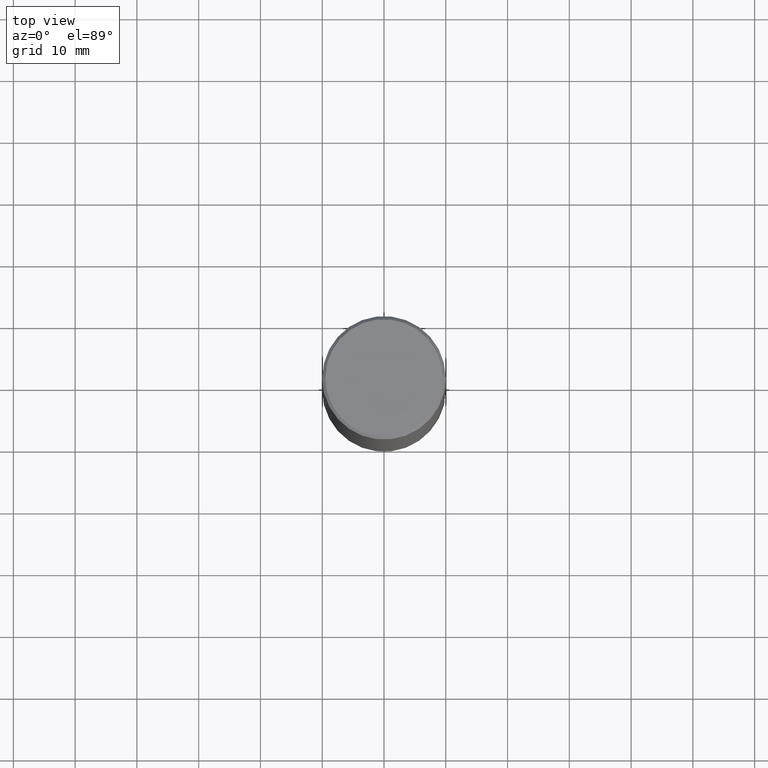
[diagram: clean part render]
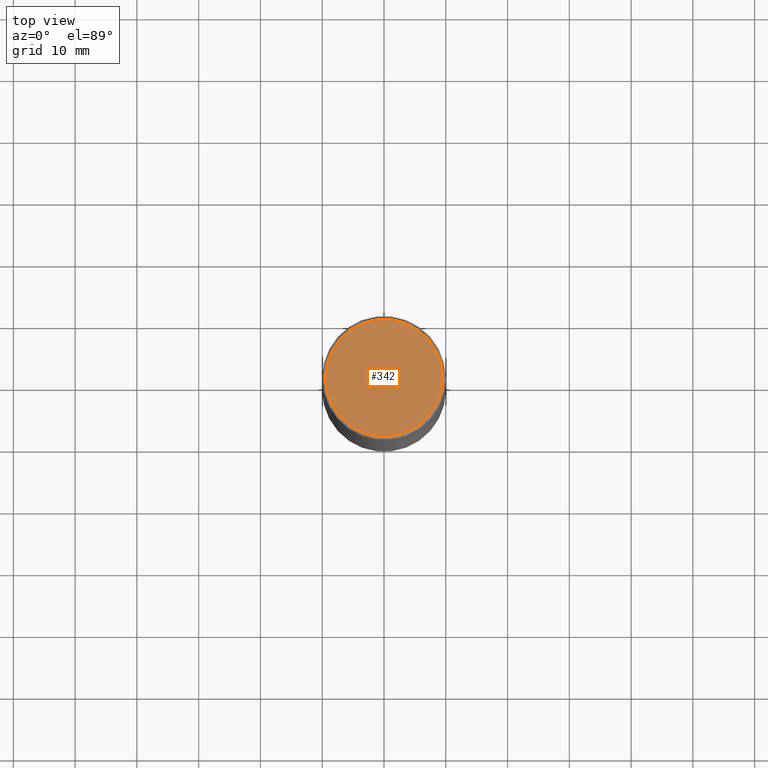
[diagram: same view with one face highlighted and labeled with its STEP entity id]
A machine part, top view. The second image highlights one B-rep face of the part: STEP entity #342.
In plain terms, the highlighted planar face has unit normal (0, -0, -1).
Its self-contained STEP definition (entity closure, byte-faithful):
#12 = CARTESIAN_POINT ( 'NONE',  ( -0.3737000000000003097, 2.644447966039789847E-15, -2.219626494852397645E-16 ) ) ;
#21 = CIRCLE ( 'NONE', #304, 0.3737000000000003097 ) ;
#51 = DIRECTION ( 'NONE',  ( 1.000000000000000000, -6.982962677686266711E-15, 4.877734241229871763E-29 ) ) ;
#64 = AXIS2_PLACEMENT_3D ( 'NONE', #152, #177, #400 ) ;
#80 = ORIENTED_EDGE ( 'NONE', *, *, #269, .T. ) ;
#95 = PLANE ( 'NONE',  #64 ) ;
#139 = CARTESIAN_POINT ( 'NONE',  ( 0.3737000000000003097, -2.667287895133369937E-15, -2.219626494852029345E-16 ) ) ;
#152 = CARTESIAN_POINT ( 'NONE',  ( 2.609533152651359776E-15, 0.3737000000000003097, -1.415747901068295320E-15 ) ) ;
#169 = EDGE_LOOP ( 'NONE', ( #204, #80 ) ) ;
#177 = DIRECTION ( 'NONE',  ( 2.438088387897960049E-29, -3.491481338843145188E-15, -1.000000000000000000 ) ) ;
#185 = DIRECTION ( 'NONE',  ( -2.445468806185136597E-29, 3.491481338843145583E-15, 1.000000000000000000 ) ) ;
#190 = AXIS2_PLACEMENT_3D ( 'NONE', #412, #185, #51 ) ;
#204 = ORIENTED_EDGE ( 'NONE', *, *, #376, .T. ) ;
#241 = VERTEX_POINT ( 'NONE', #139 ) ;
#269 = EDGE_CURVE ( 'NONE', #241, #329, #385, .T. ) ;
#285 = CARTESIAN_POINT ( 'NONE',  ( 5.428027354543142984E-45, -7.749784485978325769E-31, -2.219626494852213988E-16 ) ) ;
#304 = AXIS2_PLACEMENT_3D ( 'NONE', #285, #351, #379 ) ;
#329 = VERTEX_POINT ( 'NONE', #12 ) ;
#342 = ADVANCED_FACE ( 'NONE', ( #403 ), #95, .F. ) ;
#351 = DIRECTION ( 'NONE',  ( -2.445468806185136597E-29, 3.491481338843145583E-15, 1.000000000000000000 ) ) ;
#376 = EDGE_CURVE ( 'NONE', #329, #241, #21, .T. ) ;
#379 = DIRECTION ( 'NONE',  ( 1.000000000000000000, -6.982962677686266711E-15, 4.877734241229871763E-29 ) ) ;
#385 = CIRCLE ( 'NONE', #190, 0.3737000000000003097 ) ;
#400 = DIRECTION ( 'NONE',  ( -1.000000000000000000, 6.982962677686265922E-15, -4.876176775795935793E-29 ) ) ;
#403 = FACE_OUTER_BOUND ( 'NONE', #169, .T. ) ;
#412 = CARTESIAN_POINT ( 'NONE',  ( 5.428027354543142984E-45, -7.749784485978325769E-31, -2.219626494852213988E-16 ) ) ;